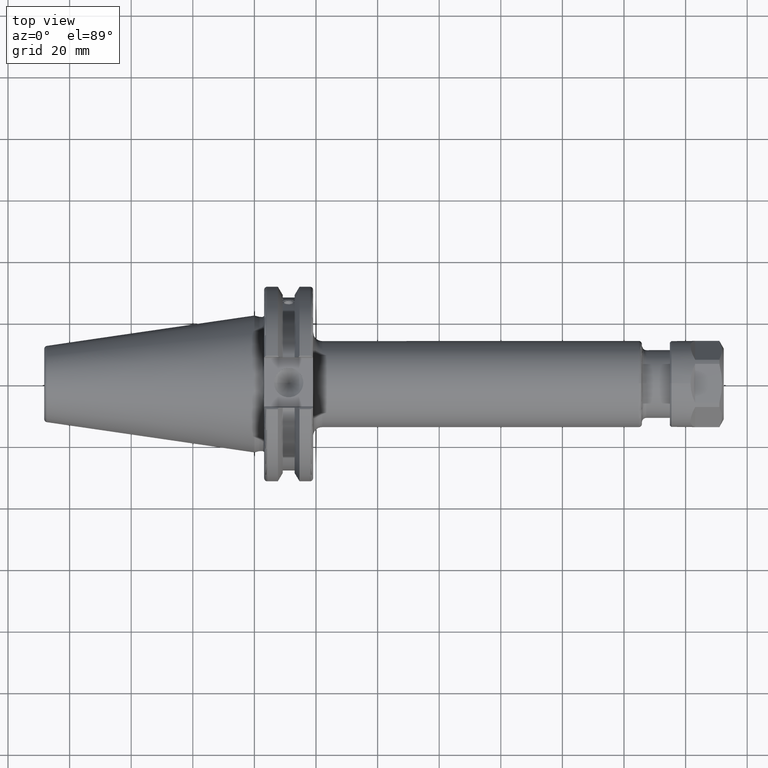
[diagram: clean part render]
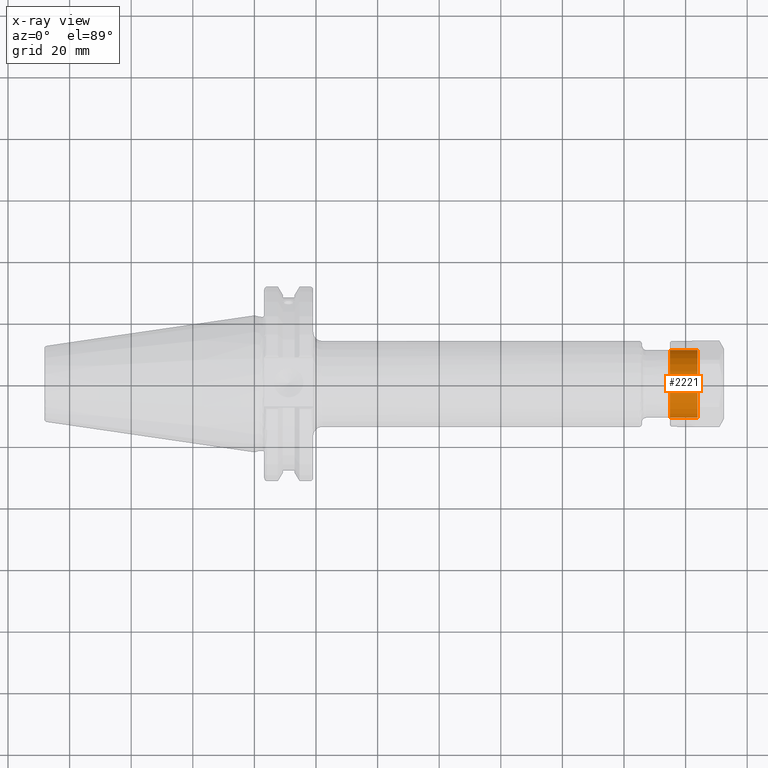
[diagram: x-ray — body ghosted, one internal face saturated and labeled with its STEP entity id]
A machine part, top view, then the same camera in x-ray: the body is ghosted and one INTERNAL B-rep face — a face not visible from any outside direction — is saturated and labeled: STEP entity #2221.
In plain terms, the highlighted cylindrical surface (bore or boss wall) has radius 11 mm, axis along (-1, 0, 0).
Its self-contained STEP definition (entity closure, byte-faithful):
#268=CYLINDRICAL_SURFACE('',#2553,11.);
#391=FACE_OUTER_BOUND('',#536,.T.);
#536=EDGE_LOOP('',(#2076,#2077,#2078,#2079));
#668=LINE('',#4189,#800);
#800=VECTOR('',#3209,11.);
#909=CIRCLE('',#2554,11.);
#910=CIRCLE('',#2555,11.);
#1120=VERTEX_POINT('',#4186);
#1121=VERTEX_POINT('',#4188);
#1439=EDGE_CURVE('',#1120,#1120,#909,.T.);
#1440=EDGE_CURVE('',#1120,#1121,#668,.T.);
#1441=EDGE_CURVE('',#1121,#1121,#910,.T.);
#2076=ORIENTED_EDGE('',*,*,#1439,.F.);
#2077=ORIENTED_EDGE('',*,*,#1440,.T.);
#2078=ORIENTED_EDGE('',*,*,#1441,.F.);
#2079=ORIENTED_EDGE('',*,*,#1440,.F.);
#2221=ADVANCED_FACE('',(#391),#268,.T.);
#2553=AXIS2_PLACEMENT_3D('',#4185,#3205,#3206);
#2554=AXIS2_PLACEMENT_3D('',#4187,#3207,#3208);
#2555=AXIS2_PLACEMENT_3D('',#4190,#3210,#3211);
#3205=DIRECTION('center_axis',(-1.,0.,0.));
#3206=DIRECTION('ref_axis',(0.,-1.,0.));
#3207=DIRECTION('center_axis',(-1.,0.,0.));
#3208=DIRECTION('ref_axis',(0.,-1.,0.));
#3209=DIRECTION('',(1.,0.,0.));
#3210=DIRECTION('center_axis',(1.,0.,0.));
#3211=DIRECTION('ref_axis',(0.,1.,0.));
#4185=CARTESIAN_POINT('Origin',(-8.75,0.,0.));
#4186=CARTESIAN_POINT('',(-8.75,11.,0.));
#4187=CARTESIAN_POINT('Origin',(-8.75,0.,0.));
#4188=CARTESIAN_POINT('',(0.25,11.,0.));
#4189=CARTESIAN_POINT('',(-8.75,11.,-1.34711147906209E-15));
#4190=CARTESIAN_POINT('Origin',(0.25,0.,0.));